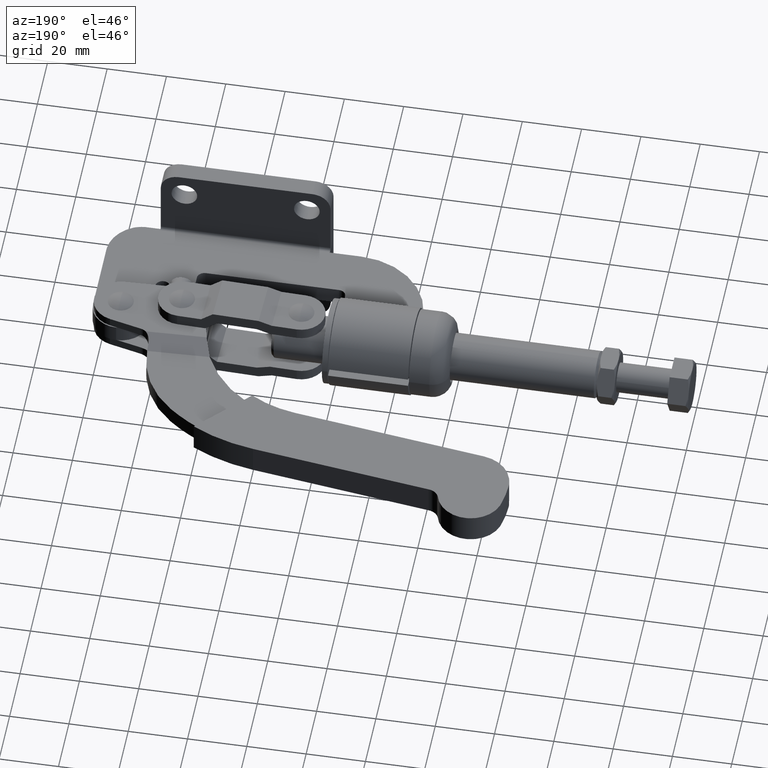
[diagram: clean part render]
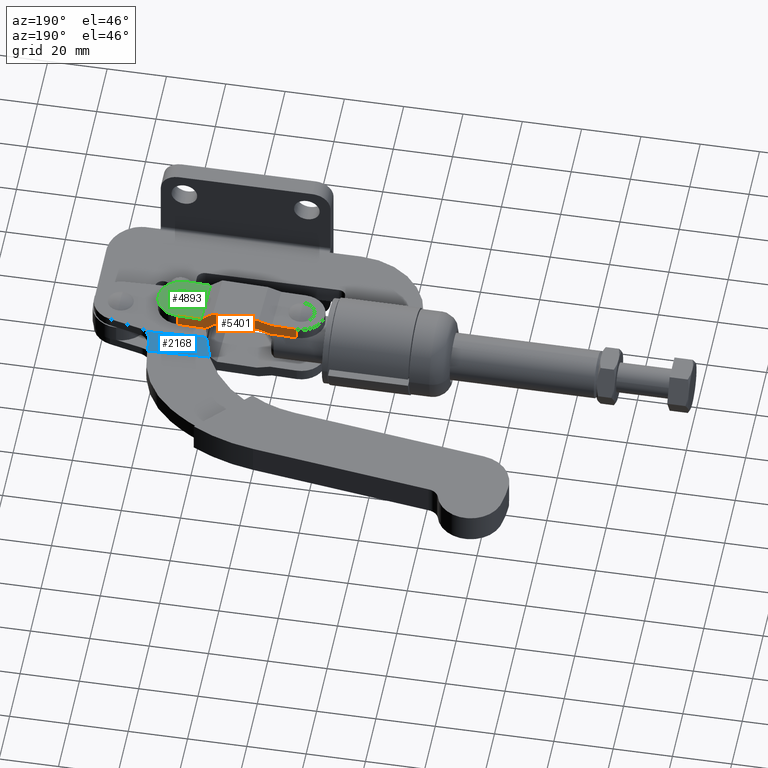
[diagram: same view with three faces highlighted in distinct colors, each labeled with its STEP entity id]
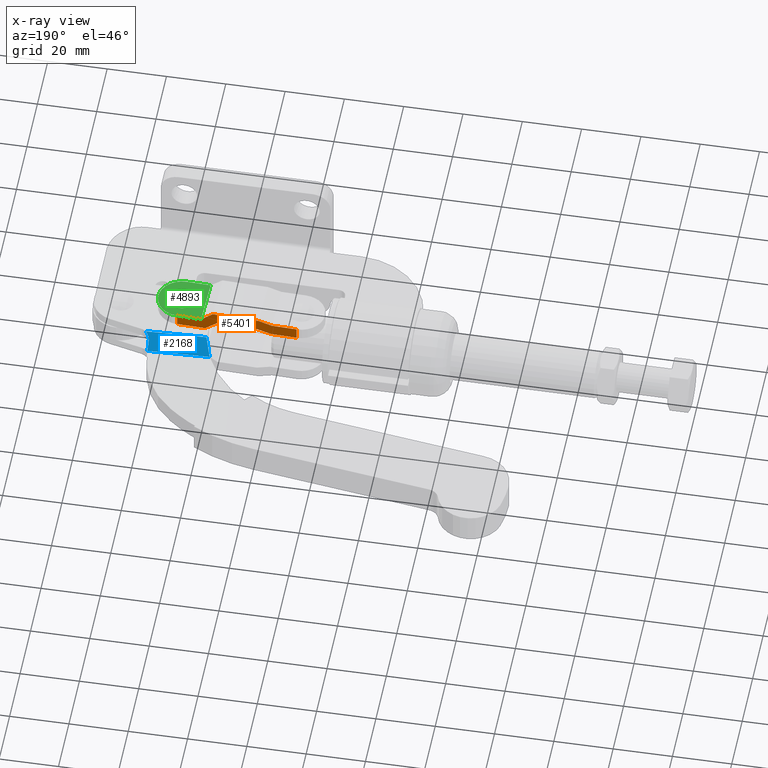
[diagram: x-ray of the same camera — body ghosted, the three highlighted faces saturated]
A machine part, auxiliary view with three faces highlighted in distinct colors.
The next image is the same camera in x-ray (body ghosted, the three faces saturated) — at least one of them is partly hidden behind the body in this view.
Their STEP definitions:

[orange] entity #5401 — the highlighted planar face has unit normal (0.0269, 0.9996, 0).
#131 = VECTOR ( 'NONE', #488, 1000.000000000000100 ) ;
#342 = VECTOR ( 'NONE', #2286, 1000.000000000000000 ) ;
#428 = VECTOR ( 'NONE', #7004, 1000.000000000000100 ) ;
#445 = VECTOR ( 'NONE', #6468, 1000.000000000000100 ) ;
#488 = DIRECTION ( 'NONE',  ( -0.9574793260509337800, 0.02577853458991320000, -0.2873478855663398300 ) ) ;
#521 = CARTESIAN_POINT ( 'NONE',  ( -39.26563441228237400, 48.65278112427902400, 5.999999999999926300 ) ) ;
#627 = LINE ( 'NONE', #9492, #8117 ) ;
#655 = ORIENTED_EDGE ( 'NONE', *, *, #1162, .F. ) ;
#1130 = DIRECTION ( 'NONE',  ( 0.9574793260509415500, -0.02577853458991340500, 0.2873478855663138000 ) ) ;
#1162 = EDGE_CURVE ( 'NONE', #4268, #2102, #627, .T. ) ;
#1458 = DIRECTION ( 'NONE',  ( -5.622152089867199700E-017, -1.200104686580895600E-016, 1.000000000000000000 ) ) ;
#1541 = VERTEX_POINT ( 'NONE', #5583 ) ;
#1557 = ORIENTED_EDGE ( 'NONE', *, *, #4097, .F. ) ;
#1649 = LINE ( 'NONE', #521, #5639 ) ;
#1766 = VECTOR ( 'NONE', #1458, 1000.000000000000000 ) ;
#1782 = EDGE_CURVE ( 'NONE', #4846, #4268, #3995, .T. ) ;
#2006 = DIRECTION ( 'NONE',  ( 0.9996377639916832500, -0.02691358024692456700, -3.530659227263019300E-015 ) ) ;
#2016 = VECTOR ( 'NONE', #4118, 1000.000000000000100 ) ;
#2102 = VERTEX_POINT ( 'NONE', #6144 ) ;
#2212 = EDGE_CURVE ( 'NONE', #1541, #7212, #4420, .T. ) ;
#2263 = LINE ( 'NONE', #6322, #4256 ) ;
#2286 = DIRECTION ( 'NONE',  ( -5.622152089867199700E-017, -1.200104686580895600E-016, 1.000000000000000000 ) ) ;
#2581 = LINE ( 'NONE', #4970, #131 ) ;
#2599 = CARTESIAN_POINT ( 'NONE',  ( -61.84452790548348100, 49.26068018912577200, 11.85000000000003000 ) ) ;
#2600 = FACE_OUTER_BOUND ( 'NONE', #6765, .T. ) ;
#2665 = LINE ( 'NONE', #4242, #445 ) ;
#3094 = ORIENTED_EDGE ( 'NONE', *, *, #5954, .F. ) ;
#3146 = VERTEX_POINT ( 'NONE', #4831 ) ;
#3157 = CARTESIAN_POINT ( 'NONE',  ( -56.75929528213644200, 49.12376877860019400, 9.199999999999915800 ) ) ;
#3169 = DIRECTION ( 'NONE',  ( 0.02691358024692457400, 0.9996377639916833600, 1.214801189592771400E-016 ) ) ;
#3185 = CARTESIAN_POINT ( 'NONE',  ( -37.86301843697223300, 48.61501802751848100, 9.999999999999930700 ) ) ;
#3457 = DIRECTION ( 'NONE',  ( -0.7805859506425123500, 0.02101597536526627500, 0.6246950475543822100 ) ) ;
#3650 = VECTOR ( 'NONE', #3457, 1000.000000000000000 ) ;
#3735 = LINE ( 'NONE', #2599, #3960 ) ;
#3743 = EDGE_CURVE ( 'NONE', #3146, #3752, #6099, .T. ) ;
#3752 = VERTEX_POINT ( 'NONE', #6775 ) ;
#3960 = VECTOR ( 'NONE', #4105, 1000.000000000000100 ) ;
#3995 = LINE ( 'NONE', #4106, #5775 ) ;
#4097 = EDGE_CURVE ( 'NONE', #8338, #3752, #3735, .T. ) ;
#4105 = DIRECTION ( 'NONE',  ( -0.9996377639916832500, 0.02691358024692456700, -3.233662476373172700E-015 ) ) ;
#4106 = CARTESIAN_POINT ( 'NONE',  ( -56.75929528213644200, 49.12376877860019400, 9.199999999999915800 ) ) ;
#4118 = DIRECTION ( 'NONE',  ( 0.9996377639916832500, -0.02691358024692456700, -3.530659227263019300E-015 ) ) ;
#4166 = CARTESIAN_POINT ( 'NONE',  ( -29.76907565436123800, 48.39710211193322200, 5.999999999999896100 ) ) ;
#4242 = CARTESIAN_POINT ( 'NONE',  ( -61.25766522009919200, 49.24487988971134200, 7.850000000000020100 ) ) ;
#4256 = VECTOR ( 'NONE', #7825, 1000.000000000000100 ) ;
#4268 = VERTEX_POINT ( 'NONE', #3157 ) ;
#4420 = LINE ( 'NONE', #6271, #428 ) ;
#4422 = ORIENTED_EDGE ( 'NONE', *, *, #4498, .F. ) ;
#4498 = EDGE_CURVE ( 'NONE', #3146, #4846, #2665, .T. ) ;
#4520 = CARTESIAN_POINT ( 'NONE',  ( -70.25440509602447000, 49.48710211193368700, 5.999999999999866800 ) ) ;
#4535 = ORIENTED_EDGE ( 'NONE', *, *, #1782, .F. ) ;
#4831 = CARTESIAN_POINT ( 'NONE',  ( -70.25440509602489700, 49.48710211193369400, 7.850000000000003200 ) ) ;
#4846 = VERTEX_POINT ( 'NONE', #9166 ) ;
#4970 = CARTESIAN_POINT ( 'NONE',  ( -57.34615796752118700, 49.13956907801461700, 13.19999999999991900 ) ) ;
#5159 = ORIENTED_EDGE ( 'NONE', *, *, #5938, .F. ) ;
#5221 = CARTESIAN_POINT ( 'NONE',  ( -29.76907565436174600, 48.39710211193323600, 5.999999999999868500 ) ) ;
#5267 = CARTESIAN_POINT ( 'NONE',  ( -41.86156949293939500, 48.72267234850620100, 13.19999999999992300 ) ) ;
#5401 = ADVANCED_FACE ( 'NONE', ( #2600 ), #8396, .T. ) ;
#5416 = CARTESIAN_POINT ( 'NONE',  ( -78.25150720795790000, 49.70241075390908500, 10.00000000000007100 ) ) ;
#5556 = EDGE_CURVE ( 'NONE', #7212, #5713, #9651, .T. ) ;
#5583 = CARTESIAN_POINT ( 'NONE',  ( -29.76907565436174600, 48.39710211193323600, 9.999999999999895200 ) ) ;
#5639 = VECTOR ( 'NONE', #5770, 1000.000000000000100 ) ;
#5713 = VERTEX_POINT ( 'NONE', #5267 ) ;
#5770 = DIRECTION ( 'NONE',  ( 0.7805859506424668300, -0.02101597536526505700, -0.6246950475544389400 ) ) ;
#5775 = VECTOR ( 'NONE', #1130, 1000.000000000000100 ) ;
#5778 = LINE ( 'NONE', #5221, #1766 ) ;
#5902 = CARTESIAN_POINT ( 'NONE',  ( -39.26563441228237400, 48.65278112427902400, 5.999999999999926300 ) ) ;
#5938 = EDGE_CURVE ( 'NONE', #5713, #9212, #2263, .T. ) ;
#5954 = EDGE_CURVE ( 'NONE', #8938, #7385, #6023, .T. ) ;
#6023 = LINE ( 'NONE', #8585, #2016 ) ;
#6099 = LINE ( 'NONE', #4520, #342 ) ;
#6144 = CARTESIAN_POINT ( 'NONE',  ( -43.26418546824885400, 48.76043544526669400, 9.199999999999871400 ) ) ;
#6191 = EDGE_CURVE ( 'NONE', #7385, #1541, #5778, .T. ) ;
#6271 = CARTESIAN_POINT ( 'NONE',  ( -21.77197354242781200, 48.18179346995784600, 9.999999999999872100 ) ) ;
#6322 = CARTESIAN_POINT ( 'NONE',  ( -41.86156949293939500, 48.72267234850620100, 13.19999999999992300 ) ) ;
#6365 = AXIS2_PLACEMENT_3D ( 'NONE', #5416, #3169, #8430 ) ;
#6468 = DIRECTION ( 'NONE',  ( 0.9996377639916832500, -0.02691358024692456700, 3.000064447002556600E-015 ) ) ;
#6548 = ORIENTED_EDGE ( 'NONE', *, *, #6811, .F. ) ;
#6572 = ORIENTED_EDGE ( 'NONE', *, *, #2212, .F. ) ;
#6765 = EDGE_LOOP ( 'NONE', ( #4422, #7482, #1557, #6794, #5159, #7059, #6572, #9395, #3094, #6548, #655, #4535 ) ) ;
#6775 = CARTESIAN_POINT ( 'NONE',  ( -70.25440509602442800, 49.48710211193368000, 11.85000000000000000 ) ) ;
#6794 = ORIENTED_EDGE ( 'NONE', *, *, #6800, .F. ) ;
#6800 = EDGE_CURVE ( 'NONE', #9212, #8338, #2581, .T. ) ;
#6811 = EDGE_CURVE ( 'NONE', #2102, #8938, #1649, .T. ) ;
#7004 = DIRECTION ( 'NONE',  ( -0.9996377639916832500, 0.02691358024692456700, 3.530659227263019300E-015 ) ) ;
#7059 = ORIENTED_EDGE ( 'NONE', *, *, #5556, .F. ) ;
#7212 = VERTEX_POINT ( 'NONE', #3185 ) ;
#7385 = VERTEX_POINT ( 'NONE', #4166 ) ;
#7482 = ORIENTED_EDGE ( 'NONE', *, *, #3743, .T. ) ;
#7744 = CARTESIAN_POINT ( 'NONE',  ( -57.34615796752118700, 49.13956907801461700, 13.19999999999991900 ) ) ;
#7825 = DIRECTION ( 'NONE',  ( -0.9996377639916832500, 0.02691358024692456700, -5.297124406065905000E-017 ) ) ;
#8117 = VECTOR ( 'NONE', #2006, 1000.000000000000100 ) ;
#8156 = CARTESIAN_POINT ( 'NONE',  ( -61.84452790548348100, 49.26068018912577200, 11.85000000000003000 ) ) ;
#8338 = VERTEX_POINT ( 'NONE', #8156 ) ;
#8396 = PLANE ( 'NONE',  #6365 ) ;
#8430 = DIRECTION ( 'NONE',  ( 0.9996377639916832500, -0.02691358024692457100, -3.530659227263019700E-015 ) ) ;
#8585 = CARTESIAN_POINT ( 'NONE',  ( -21.77197354242782600, 48.18179346995785300, 5.999999999999865900 ) ) ;
#8770 = CARTESIAN_POINT ( 'NONE',  ( -37.86301843697223300, 48.61501802751848100, 9.999999999999930700 ) ) ;
#8938 = VERTEX_POINT ( 'NONE', #5902 ) ;
#9166 = CARTESIAN_POINT ( 'NONE',  ( -61.25766522009919200, 49.24487988971134200, 7.850000000000020100 ) ) ;
#9212 = VERTEX_POINT ( 'NONE', #7744 ) ;
#9395 = ORIENTED_EDGE ( 'NONE', *, *, #6191, .F. ) ;
#9492 = CARTESIAN_POINT ( 'NONE',  ( -43.26418546824885400, 48.76043544526669400, 9.199999999999871400 ) ) ;
#9651 = LINE ( 'NONE', #8770, #3650 ) ;

[blue] entity #2168 — the highlighted planar face has unit normal (0.0175, -0.4467, -0.8945).
#71 = CARTESIAN_POINT ( 'NONE',  ( -21.63352346051582100, 57.10101214928025800, 4.172047648006684800 ) ) ;
#391 = ORIENTED_EDGE ( 'NONE', *, *, #6682, .F. ) ;
#1008 = VERTEX_POINT ( 'NONE', #8100 ) ;
#1136 = FACE_OUTER_BOUND ( 'NONE', #2029, .T. ) ;
#1419 = CARTESIAN_POINT ( 'NONE',  ( -40.43231010088899100, 52.70445389908375200, 5.999999999999882800 ) ) ;
#1625 = VERTEX_POINT ( 'NONE', #4917 ) ;
#1703 = VECTOR ( 'NONE', #4958, 1000.000000000000200 ) ;
#2029 = EDGE_LOOP ( 'NONE', ( #5708, #2687, #391, #8152, #7670 ) ) ;
#2136 = CARTESIAN_POINT ( 'NONE',  ( -21.63352346051582100, 57.10101214928025800, 4.172047648006684800 ) ) ;
#2168 = ADVANCED_FACE ( 'NONE', ( #1136 ), #5457, .F. ) ;
#2175 = CARTESIAN_POINT ( 'NONE',  ( -41.68907660445507400, 56.70892502244871700, 3.975391352151839800 ) ) ;
#2264 = CARTESIAN_POINT ( 'NONE',  ( -21.60111967039440700, 57.88310556928853100, 3.782068948697032300 ) ) ;
#2464 = CARTESIAN_POINT ( 'NONE',  ( -151.1270247720624700, 54.37376824346224400, 2.999999999999877000 ) ) ;
#2687 = ORIENTED_EDGE ( 'NONE', *, *, #9376, .F. ) ;
#3253 = CARTESIAN_POINT ( 'NONE',  ( -21.13342041624909100, 54.41570763500044400, 5.522997094231479700 ) ) ;
#3299 = DIRECTION ( 'NONE',  ( 0.9992332293475072500, 0.03915294839155600300, 5.629217755959563200E-017 ) ) ;
#3961 = DIRECTION ( 'NONE',  ( 0.01750492540868029200, -0.4467480448898997800, -0.8944885477039316000 ) ) ;
#4160 = VECTOR ( 'NONE', #3299, 1000.000000000000200 ) ;
#4746 = CARTESIAN_POINT ( 'NONE',  ( -21.63352346051582100, 57.10101214928025800, 4.172047648006684800 ) ) ;
#4917 = CARTESIAN_POINT ( 'NONE',  ( -40.43231010088899100, 52.70445389908375200, 5.999999999999882800 ) ) ;
#4958 = DIRECTION ( 'NONE',  ( 0.9992332293475072500, 0.03915294839155600300, 5.629217755959563200E-017 ) ) ;
#5018 = CARTESIAN_POINT ( 'NONE',  ( -21.61857936631111000, 59.44829672221703000, 2.999999999999887200 ) ) ;
#5052 =( BOUNDED_CURVE ( )  B_SPLINE_CURVE ( 3, ( #9056, #8262, #2264, #71 ),
 .UNSPECIFIED., .F., .F. ) 
 B_SPLINE_CURVE_WITH_KNOTS ( ( 4, 4 ),
 ( 4.722876419263940300, 4.792960377762652200 ),
 .UNSPECIFIED. ) 
 CURVE ( )  GEOMETRIC_REPRESENTATION_ITEM ( )  RATIONAL_B_SPLINE_CURVE ( ( 1.000000000000000000, 0.9995907284460872100, 0.9995907284460872100, 1.000000000000000000 ) ) 
 REPRESENTATION_ITEM ( '' )  );
#5165 = CARTESIAN_POINT ( 'NONE',  ( -40.98492272020958200, 54.73046937823828300, 4.977301722578388900 ) ) ;
#5326 = EDGE_CURVE ( 'NONE', #8056, #6663, #5052, .T. ) ;
#5457 = PLANE ( 'NONE',  #9083 ) ;
#5708 = ORIENTED_EDGE ( 'NONE', *, *, #5326, .F. ) ;
#5886 = EDGE_CURVE ( 'NONE', #6663, #1008, #8105, .T. ) ;
#6168 = LINE ( 'NONE', #6309, #4160 ) ;
#6261 = CARTESIAN_POINT ( 'NONE',  ( -21.69152942416280900, 55.70098819160184400, 4.870147782913724300 ) ) ;
#6309 = CARTESIAN_POINT ( 'NONE',  ( -150.8920264730800200, 48.37631163214733500, 5.999999999999876500 ) ) ;
#6663 = VERTEX_POINT ( 'NONE', #2136 ) ;
#6682 = EDGE_CURVE ( 'NONE', #1625, #6685, #9146, .T. ) ;
#6685 = VERTEX_POINT ( 'NONE', #8942 ) ;
#7417 = CARTESIAN_POINT ( 'NONE',  ( -42.54074386411783600, 58.62850370216586500, 2.999999999999884500 ) ) ;
#7670 = ORIENTED_EDGE ( 'NONE', *, *, #5886, .F. ) ;
#8056 = VERTEX_POINT ( 'NONE', #5018 ) ;
#8100 = CARTESIAN_POINT ( 'NONE',  ( -20.07084022565837600, 53.50227722579769100, 5.999999999999884500 ) ) ;
#8105 =( BOUNDED_CURVE ( )  B_SPLINE_CURVE ( 3, ( #4746, #6261, #3253, #8530 ),
 .UNSPECIFIED., .F., .F. ) 
 B_SPLINE_CURVE_WITH_KNOTS ( ( 4, 4 ),
 ( 4.631817583006729900, 5.533961583163806700 ),
 .UNSPECIFIED. ) 
 CURVE ( )  GEOMETRIC_REPRESENTATION_ITEM ( )  RATIONAL_B_SPLINE_CURVE ( ( 1.000000000000000000, 0.9333202013103518700, 0.9333202013103518700, 1.000000000000000000 ) ) 
 REPRESENTATION_ITEM ( '' )  );
#8152 = ORIENTED_EDGE ( 'NONE', *, *, #9258, .T. ) ;
#8262 = CARTESIAN_POINT ( 'NONE',  ( -21.59613626609389000, 58.66585411698188300, 3.391226438640020400 ) ) ;
#8530 = CARTESIAN_POINT ( 'NONE',  ( -20.07084022565837600, 53.50227722579769100, 5.999999999999884500 ) ) ;
#8942 = CARTESIAN_POINT ( 'NONE',  ( -42.54074386411783600, 58.62850370216586500, 2.999999999999884500 ) ) ;
#9056 = CARTESIAN_POINT ( 'NONE',  ( -21.61857936631111000, 59.44829672221703000, 2.999999999999887200 ) ) ;
#9083 = AXIS2_PLACEMENT_3D ( 'NONE', #2464, #3961, #9219 ) ;
#9146 =( BOUNDED_CURVE ( )  B_SPLINE_CURVE ( 3, ( #1419, #5165, #2175, #7417 ),
 .UNSPECIFIED., .F., .F. ) 
 B_SPLINE_CURVE_WITH_KNOTS ( ( 4, 4 ),
 ( 1.797914333796197600, 1.949214200286051500 ),
 .UNSPECIFIED. ) 
 CURVE ( )  GEOMETRIC_REPRESENTATION_ITEM ( )  RATIONAL_B_SPLINE_CURVE ( ( 1.000000000000000000, 0.9980932721299886600, 0.9980932721299886600, 1.000000000000000000 ) ) 
 REPRESENTATION_ITEM ( '' )  );
#9219 = DIRECTION ( 'NONE',  ( 0.03502186394508988900, -0.8938026801365613900, 0.4470908610411437600 ) ) ;
#9258 = EDGE_CURVE ( 'NONE', #1625, #1008, #6168, .T. ) ;
#9376 = EDGE_CURVE ( 'NONE', #6685, #8056, #9450, .T. ) ;
#9450 = LINE ( 'NONE', #9456, #1703 ) ;
#9456 = CARTESIAN_POINT ( 'NONE',  ( -151.1270247720624700, 54.37376824346224400, 2.999999999999877000 ) ) ;

[green] entity #4893 — the highlighted planar face has unit normal (-0, 0, -1).
#82 = CARTESIAN_POINT ( 'NONE',  ( -29.98438429633661100, 44.73012701892211100, 9.999999999999900500 ) ) ;
#428 = VECTOR ( 'NONE', #7004, 1000.000000000000100 ) ;
#1157 = AXIS2_PLACEMENT_3D ( 'NONE', #8096, #3601, #8860 ) ;
#1280 = VERTEX_POINT ( 'NONE', #7459 ) ;
#1383 = AXIS2_PLACEMENT_3D ( 'NONE', #1469, #6721, #2231 ) ;
#1469 = CARTESIAN_POINT ( 'NONE',  ( -29.98438429633660700, 40.39999999999977100, 9.999999999999900500 ) ) ;
#1477 = AXIS2_PLACEMENT_3D ( 'NONE', #8296, #3807, #9060 ) ;
#1541 = VERTEX_POINT ( 'NONE', #5583 ) ;
#2073 = CARTESIAN_POINT ( 'NONE',  ( -38.29363572092302100, 32.62081380365152900, 9.999999999999925400 ) ) ;
#2212 = EDGE_CURVE ( 'NONE', #1541, #7212, #4420, .T. ) ;
#2231 = DIRECTION ( 'NONE',  ( -1.000000000000000000, 0.0000000000000000000, 3.605555036969057800E-015 ) ) ;
#2495 = EDGE_CURVE ( 'NONE', #1541, #1280, #2634, .T. ) ;
#2498 = PLANE ( 'NONE',  #4228 ) ;
#2500 = ORIENTED_EDGE ( 'NONE', *, *, #9576, .F. ) ;
#2502 = VERTEX_POINT ( 'NONE', #3011 ) ;
#2634 = CIRCLE ( 'NONE', #1477, 7.999999999999994700 ) ;
#2767 = EDGE_LOOP ( 'NONE', ( #3136, #4961 ) ) ;
#2768 = CARTESIAN_POINT ( 'NONE',  ( -38.29363572092302100, 32.62081380365152900, 9.999999999999925400 ) ) ;
#2861 = EDGE_CURVE ( 'NONE', #2502, #4757, #9570, .T. ) ;
#3011 = CARTESIAN_POINT ( 'NONE',  ( -29.98438429633661100, 36.06987298107743100, 9.999999999999898700 ) ) ;
#3136 = ORIENTED_EDGE ( 'NONE', *, *, #5619, .F. ) ;
#3185 = CARTESIAN_POINT ( 'NONE',  ( -37.86301843697223300, 48.61501802751848100, 9.999999999999930700 ) ) ;
#3241 = DIRECTION ( 'NONE',  ( -0.02691358024692457100, -0.9996377639916832500, -1.214801189592771400E-016 ) ) ;
#3601 = DIRECTION ( 'NONE',  ( 3.526110830427794000E-015, -2.164587949233835300E-016, 1.000000000000000000 ) ) ;
#3807 = DIRECTION ( 'NONE',  ( -3.526110830427794000E-015, 2.164587949233835300E-016, -1.000000000000000000 ) ) ;
#4001 = CARTESIAN_POINT ( 'NONE',  ( -22.20259082637861400, 32.18758924609090100, 9.999999999999872100 ) ) ;
#4222 = ORIENTED_EDGE ( 'NONE', *, *, #2495, .F. ) ;
#4228 = AXIS2_PLACEMENT_3D ( 'NONE', #5458, #7739, #3241 ) ;
#4420 = LINE ( 'NONE', #6271, #428 ) ;
#4560 = VERTEX_POINT ( 'NONE', #2073 ) ;
#4648 = VECTOR ( 'NONE', #4766, 1000.000000000000100 ) ;
#4757 = VERTEX_POINT ( 'NONE', #82 ) ;
#4766 = DIRECTION ( 'NONE',  ( -0.9996377639916832500, 0.02691358024692456700, 3.530659227263019300E-015 ) ) ;
#4832 = FACE_BOUND ( 'NONE', #2767, .T. ) ;
#4893 = ADVANCED_FACE ( 'NONE', ( #4832, #8845 ), #2498, .F. ) ;
#4961 = ORIENTED_EDGE ( 'NONE', *, *, #2861, .F. ) ;
#5458 = CARTESIAN_POINT ( 'NONE',  ( -22.20259082637861400, 32.18758924609090100, 9.999999999999872100 ) ) ;
#5583 = CARTESIAN_POINT ( 'NONE',  ( -29.76907565436174600, 48.39710211193323600, 9.999999999999895200 ) ) ;
#5619 = EDGE_CURVE ( 'NONE', #4757, #2502, #5654, .T. ) ;
#5654 = CIRCLE ( 'NONE', #1157, 4.330127018922342900 ) ;
#5987 = ORIENTED_EDGE ( 'NONE', *, *, #9195, .F. ) ;
#6271 = CARTESIAN_POINT ( 'NONE',  ( -21.77197354242781200, 48.18179346995784600, 9.999999999999872100 ) ) ;
#6721 = DIRECTION ( 'NONE',  ( 3.526110830427794000E-015, -2.164587949233835300E-016, 1.000000000000000000 ) ) ;
#6846 = LINE ( 'NONE', #2768, #8619 ) ;
#7004 = DIRECTION ( 'NONE',  ( -0.9996377639916832500, 0.02691358024692456700, 3.530659227263019300E-015 ) ) ;
#7212 = VERTEX_POINT ( 'NONE', #3185 ) ;
#7459 = CARTESIAN_POINT ( 'NONE',  ( -30.19969293831254500, 32.40289788806632700, 9.999999999999897000 ) ) ;
#7739 = DIRECTION ( 'NONE',  ( -3.526110830427794400E-015, 2.164587949233835300E-016, -1.000000000000000000 ) ) ;
#8009 = DIRECTION ( 'NONE',  ( 0.02691358024692456700, 0.9996377639916832500, 1.214801189592771400E-016 ) ) ;
#8096 = CARTESIAN_POINT ( 'NONE',  ( -29.98438429633660700, 40.39999999999977100, 9.999999999999900500 ) ) ;
#8296 = CARTESIAN_POINT ( 'NONE',  ( -29.98438429633663200, 40.39999999999977100, 9.999999999999898700 ) ) ;
#8561 = ORIENTED_EDGE ( 'NONE', *, *, #2212, .T. ) ;
#8619 = VECTOR ( 'NONE', #8009, 1000.000000000000100 ) ;
#8627 = LINE ( 'NONE', #4001, #4648 ) ;
#8845 = FACE_OUTER_BOUND ( 'NONE', #9675, .T. ) ;
#8860 = DIRECTION ( 'NONE',  ( -1.000000000000000000, 0.0000000000000000000, 3.605555036969057800E-015 ) ) ;
#9060 = DIRECTION ( 'NONE',  ( -0.02691358024692468200, -0.9996377639916833600, -2.168404344971010300E-016 ) ) ;
#9195 = EDGE_CURVE ( 'NONE', #1280, #4560, #8627, .T. ) ;
#9570 = CIRCLE ( 'NONE', #1383, 4.330127018922342900 ) ;
#9576 = EDGE_CURVE ( 'NONE', #4560, #7212, #6846, .T. ) ;
#9675 = EDGE_LOOP ( 'NONE', ( #4222, #8561, #2500, #5987 ) ) ;